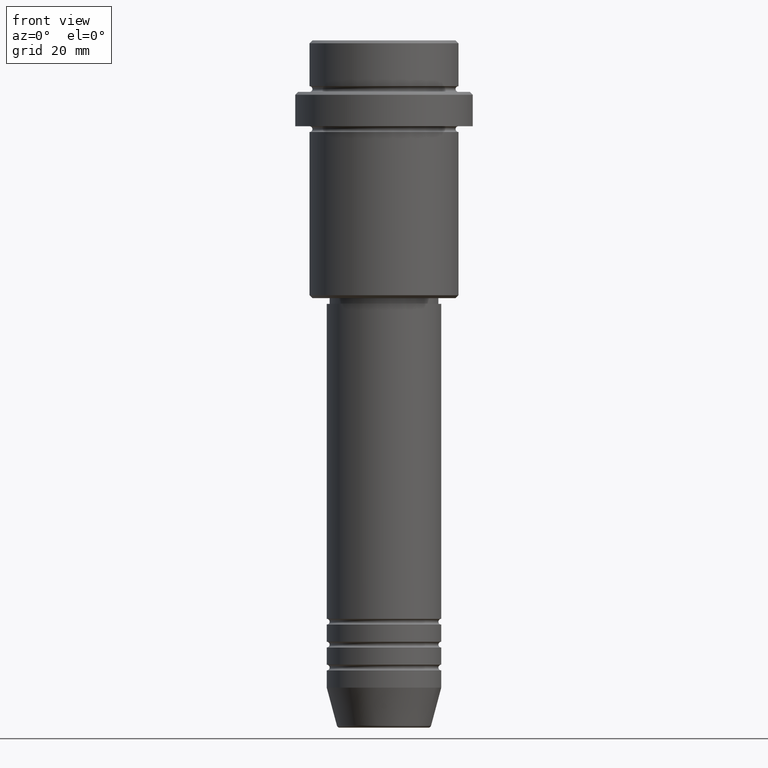
[diagram: clean part render]
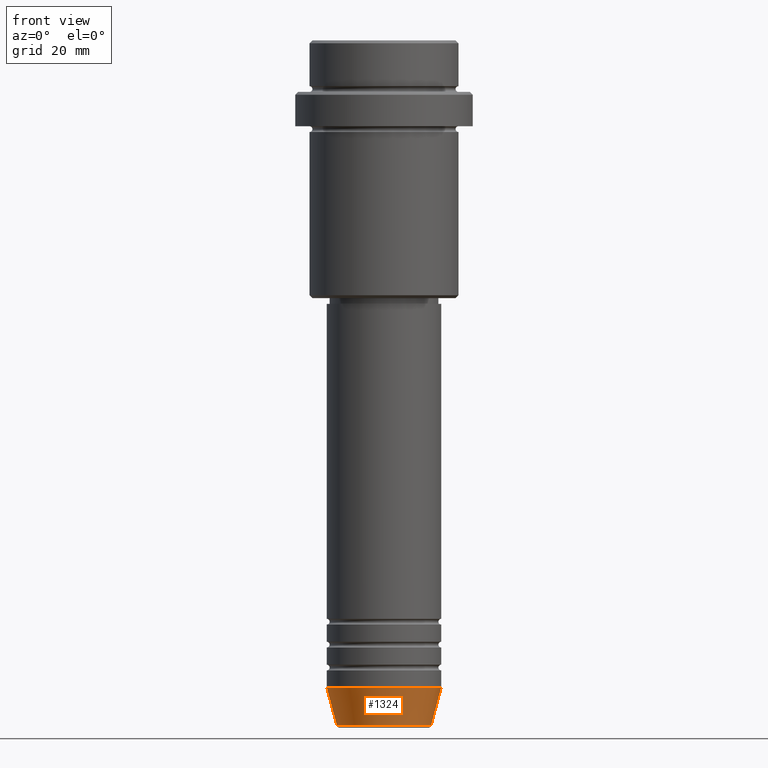
[diagram: same view with one face highlighted and labeled with its STEP entity id]
A machine part, front view. The second image highlights one B-rep face of the part: STEP entity #1324.
In plain terms, the highlighted conical surface has half-angle 15 deg.
Its self-contained STEP definition (entity closure, byte-faithful):
#49 = CIRCLE ( 'NONE', #826, 10.00000000000000000 ) ;
#80 = FACE_OUTER_BOUND ( 'NONE', #722, .T. ) ;
#84 = DIRECTION ( 'NONE',  ( -0.000000000000000000, -0.000000000000000000, 1.000000000000000000 ) ) ;
#92 = DIRECTION ( 'NONE',  ( 1.000000000000000000, 0.000000000000000000, 0.000000000000000000 ) ) ;
#122 = EDGE_CURVE ( 'NONE', #884, #1092, #49, .T. ) ;
#259 = VERTEX_POINT ( 'NONE', #1334 ) ;
#319 = CARTESIAN_POINT ( 'NONE',  ( 0.000000000000000000, 0.000000000000000000, -112.9999999999999858 ) ) ;
#355 = ORIENTED_EDGE ( 'NONE', *, *, #601, .F. ) ;
#356 = AXIS2_PLACEMENT_3D ( 'NONE', #426, #84, #392 ) ;
#392 = DIRECTION ( 'NONE',  ( 1.000000000000000000, 0.000000000000000000, 0.000000000000000000 ) ) ;
#401 = CARTESIAN_POINT ( 'NONE',  ( -8.223655072137187716, 1.115877042642911856E-15, -119.6294095225512564 ) ) ;
#416 = VECTOR ( 'NONE', #1027, 1000.000000000000000 ) ;
#426 = CARTESIAN_POINT ( 'NONE',  ( 0.000000000000000000, 0.000000000000000000, -119.6294095225512564 ) ) ;
#469 = CARTESIAN_POINT ( 'NONE',  ( 10.00000000000000000, 0.000000000000000000, -112.9999999999999858 ) ) ;
#523 = EDGE_CURVE ( 'NONE', #259, #1092, #598, .T. ) ;
#598 = LINE ( 'NONE', #713, #416 ) ;
#601 = EDGE_CURVE ( 'NONE', #857, #884, #612, .T. ) ;
#612 = LINE ( 'NONE', #851, #921 ) ;
#646 = DIRECTION ( 'NONE',  ( -0.000000000000000000, -0.000000000000000000, 1.000000000000000000 ) ) ;
#673 = ORIENTED_EDGE ( 'NONE', *, *, #122, .F. ) ;
#713 = CARTESIAN_POINT ( 'NONE',  ( 10.00000000000000000, 0.000000000000000000, -112.9999999999999858 ) ) ;
#722 = EDGE_LOOP ( 'NONE', ( #355, #1199, #818, #673 ) ) ;
#797 = DIRECTION ( 'NONE',  ( 1.000000000000000000, 0.000000000000000000, 0.000000000000000000 ) ) ;
#818 = ORIENTED_EDGE ( 'NONE', *, *, #523, .T. ) ;
#826 = AXIS2_PLACEMENT_3D ( 'NONE', #1108, #902, #797 ) ;
#851 = CARTESIAN_POINT ( 'NONE',  ( -10.00000000000000000, 1.224646799147353256E-15, -112.9999999999999858 ) ) ;
#857 = VERTEX_POINT ( 'NONE', #401 ) ;
#884 = VERTEX_POINT ( 'NONE', #1135 ) ;
#902 = DIRECTION ( 'NONE',  ( -0.000000000000000000, -0.000000000000000000, 1.000000000000000000 ) ) ;
#921 = VECTOR ( 'NONE', #1068, 1000.000000000000000 ) ;
#932 = AXIS2_PLACEMENT_3D ( 'NONE', #319, #646, #92 ) ;
#981 = CIRCLE ( 'NONE', #356, 8.223655072137187716 ) ;
#1027 = DIRECTION ( 'NONE',  ( 0.2588190451025213501, 0.000000000000000000, 0.9659258262890680902 ) ) ;
#1068 = DIRECTION ( 'NONE',  ( -0.2588190451025213501, 3.169619151431772337E-17, 0.9659258262890680902 ) ) ;
#1092 = VERTEX_POINT ( 'NONE', #469 ) ;
#1108 = CARTESIAN_POINT ( 'NONE',  ( 0.000000000000000000, 0.000000000000000000, -112.9999999999999858 ) ) ;
#1135 = CARTESIAN_POINT ( 'NONE',  ( -10.00000000000000000, 1.224646799147353256E-15, -112.9999999999999858 ) ) ;
#1199 = ORIENTED_EDGE ( 'NONE', *, *, #1205, .T. ) ;
#1204 = CONICAL_SURFACE ( 'NONE', #932, 10.00000000000000000, 0.2617993877991500740 ) ;
#1205 = EDGE_CURVE ( 'NONE', #857, #259, #981, .T. ) ;
#1324 = ADVANCED_FACE ( 'NONE', ( #80 ), #1204, .T. ) ;
#1334 = CARTESIAN_POINT ( 'NONE',  ( 8.223655072137187716, 0.000000000000000000, -119.6294095225512564 ) ) ;